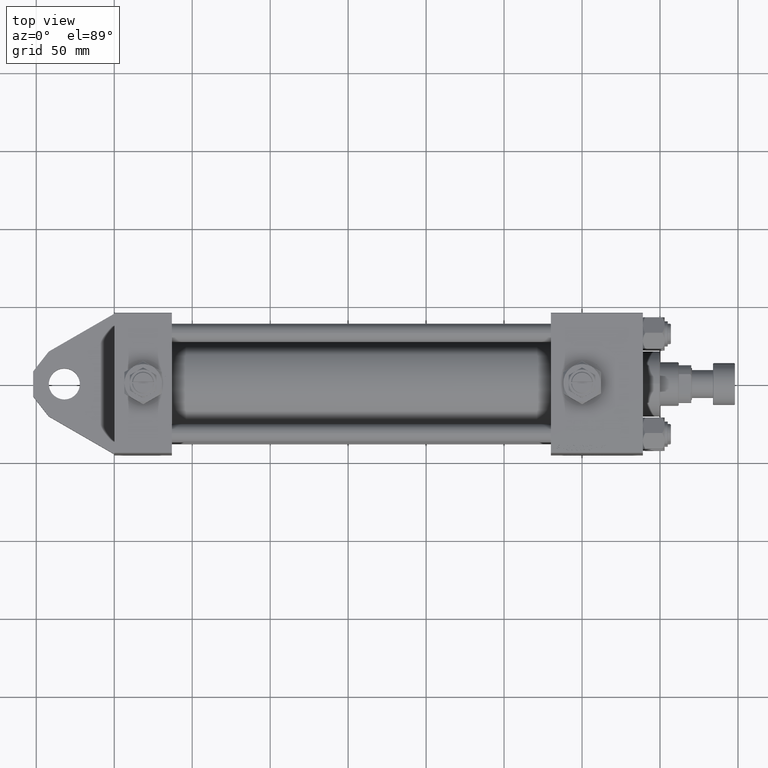
[diagram: clean part render]
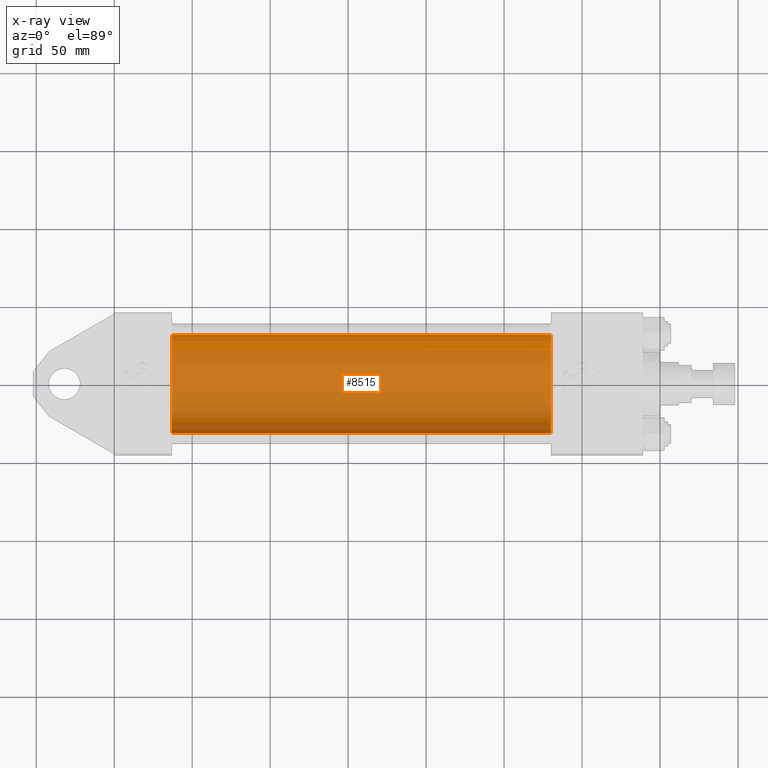
[diagram: x-ray — body ghosted, one internal face saturated and labeled with its STEP entity id]
A machine part, top view, then the same camera in x-ray: the body is ghosted and one INTERNAL B-rep face — a face not visible from any outside direction — is saturated and labeled: STEP entity #8515.
In plain terms, the highlighted cylindrical surface (partial cylindrical patch) has radius 31.5 mm, axis along (-1, -0, 0).
Its self-contained STEP definition (entity closure, byte-faithful):
#1000 = VERTEX_POINT ( 'NONE', #25799 ) ;
#2964 = CARTESIAN_POINT ( 'NONE',  ( 279.9999999999999432, -2.602085213965210642E-15, 0.000000000000000000 ) ) ;
#3838 = ORIENTED_EDGE ( 'NONE', *, *, #14415, .T. ) ;
#5868 = EDGE_CURVE ( 'NONE', #1000, #6415, #10056, .T. ) ;
#6415 = VERTEX_POINT ( 'NONE', #39399 ) ;
#7484 = CARTESIAN_POINT ( 'NONE',  ( 279.9999999999999432, 1.255552203348951850E-15, -31.50000000000000000 ) ) ;
#8515 = ADVANCED_FACE ( 'NONE', ( #38451 ), #16313, .F. ) ;
#8746 = LINE ( 'NONE', #29163, #23596 ) ;
#9589 = DIRECTION ( 'NONE',  ( 1.000000000000000000, 0.000000000000000000, 0.000000000000000000 ) ) ;
#10056 = CIRCLE ( 'NONE', #13981, 31.50000000000000000 ) ;
#10534 = EDGE_CURVE ( 'NONE', #15158, #6415, #22709, .T. ) ;
#10563 = DIRECTION ( 'NONE',  ( 1.000000000000000000, 0.000000000000000000, 0.000000000000000000 ) ) ;
#12383 = CARTESIAN_POINT ( 'NONE',  ( 279.9999999999999432, -2.602085213965210642E-15, 0.000000000000000000 ) ) ;
#12747 = CARTESIAN_POINT ( 'NONE',  ( 279.9999999999999432, -2.602085213965210642E-15, 31.50000000000000000 ) ) ;
#13892 = DIRECTION ( 'NONE',  ( -1.000000000000000000, -0.000000000000000000, -0.000000000000000000 ) ) ;
#13981 = AXIS2_PLACEMENT_3D ( 'NONE', #43267, #9589, #39579 ) ;
#14415 = EDGE_CURVE ( 'NONE', #32098, #15158, #41637, .T. ) ;
#15158 = VERTEX_POINT ( 'NONE', #7484 ) ;
#15780 = EDGE_CURVE ( 'NONE', #32098, #1000, #8746, .T. ) ;
#16313 = CYLINDRICAL_SURFACE ( 'NONE', #33660, 31.50000000000000000 ) ;
#19767 = DIRECTION ( 'NONE',  ( 0.000000000000000000, 0.000000000000000000, 1.000000000000000000 ) ) ;
#22709 = LINE ( 'NONE', #37687, #41605 ) ;
#23596 = VECTOR ( 'NONE', #13892, 1000.000000000000000 ) ;
#23958 = DIRECTION ( 'NONE',  ( -1.000000000000000000, -0.000000000000000000, -0.000000000000000000 ) ) ;
#25799 = CARTESIAN_POINT ( 'NONE',  ( 37.00000000000000000, -2.602085213965210642E-15, 31.50000000000000000 ) ) ;
#28143 = EDGE_LOOP ( 'NONE', ( #3838, #40993, #45887, #42530 ) ) ;
#29163 = CARTESIAN_POINT ( 'NONE',  ( 279.9999999999999432, -2.602085213965210642E-15, 31.50000000000000000 ) ) ;
#32098 = VERTEX_POINT ( 'NONE', #12747 ) ;
#32975 = AXIS2_PLACEMENT_3D ( 'NONE', #2964, #10563, #48176 ) ;
#33660 = AXIS2_PLACEMENT_3D ( 'NONE', #12383, #23958, #19767 ) ;
#37687 = CARTESIAN_POINT ( 'NONE',  ( 279.9999999999999432, 1.255552203348951850E-15, -31.50000000000000000 ) ) ;
#38451 = FACE_OUTER_BOUND ( 'NONE', #28143, .T. ) ;
#39399 = CARTESIAN_POINT ( 'NONE',  ( 37.00000000000000000, 1.255552203348951850E-15, -31.50000000000000000 ) ) ;
#39579 = DIRECTION ( 'NONE',  ( 0.000000000000000000, 0.000000000000000000, -1.000000000000000000 ) ) ;
#40993 = ORIENTED_EDGE ( 'NONE', *, *, #10534, .T. ) ;
#41605 = VECTOR ( 'NONE', #48293, 1000.000000000000000 ) ;
#41637 = CIRCLE ( 'NONE', #32975, 31.50000000000000000 ) ;
#42530 = ORIENTED_EDGE ( 'NONE', *, *, #15780, .F. ) ;
#43267 = CARTESIAN_POINT ( 'NONE',  ( 37.00000000000000000, -2.602085213965210642E-15, 0.000000000000000000 ) ) ;
#45887 = ORIENTED_EDGE ( 'NONE', *, *, #5868, .F. ) ;
#48176 = DIRECTION ( 'NONE',  ( 0.000000000000000000, 0.000000000000000000, -1.000000000000000000 ) ) ;
#48293 = DIRECTION ( 'NONE',  ( -1.000000000000000000, -0.000000000000000000, -0.000000000000000000 ) ) ;